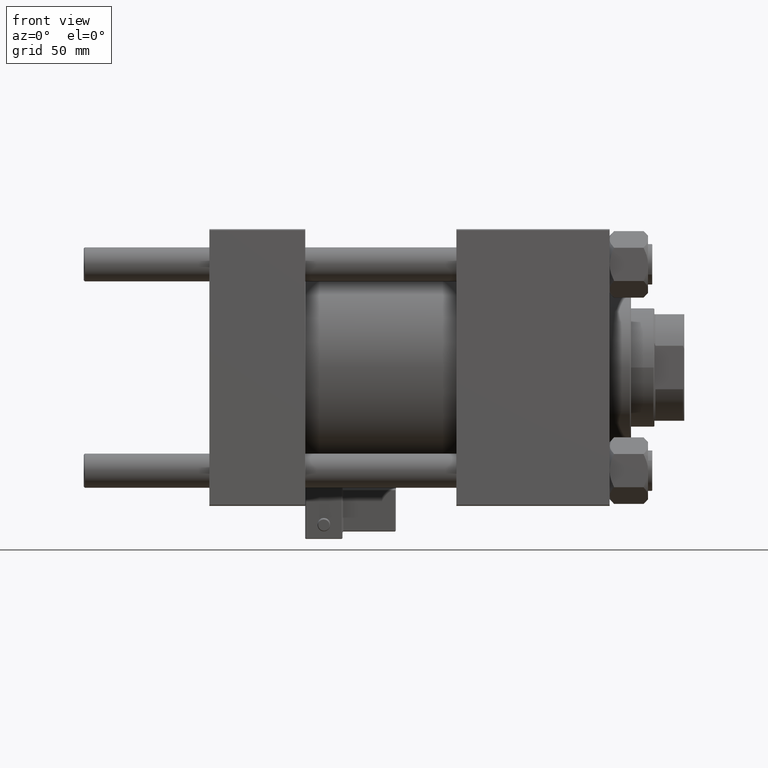
[diagram: clean part render]
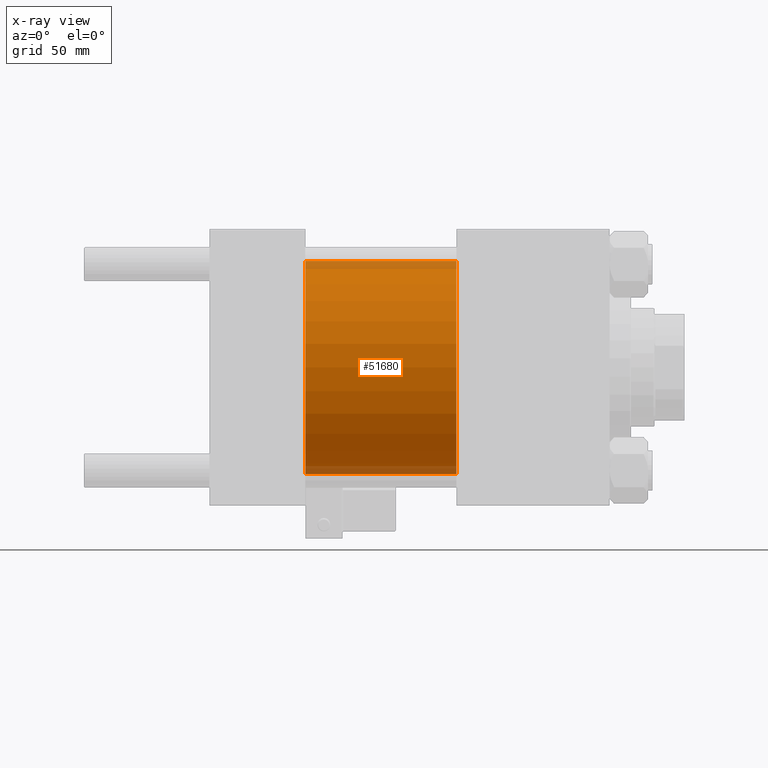
[diagram: x-ray — body ghosted, one internal face saturated and labeled with its STEP entity id]
A machine part, front view, then the same camera in x-ray: the body is ghosted and one INTERNAL B-rep face — a face not visible from any outside direction — is saturated and labeled: STEP entity #51680.
In plain terms, the highlighted cylindrical surface (partial cylindrical patch) has radius 50 mm, axis along (-1, -0, -0).
Its self-contained STEP definition (entity closure, byte-faithful):
#541 = CARTESIAN_POINT ( 'NONE',  ( 45.00000000000000000, 0.000000000000000000, 50.00000000000000000 ) ) ;
#750 = DIRECTION ( 'NONE',  ( 0.000000000000000000, 0.000000000000000000, -1.000000000000000000 ) ) ;
#977 = VERTEX_POINT ( 'NONE', #3484 ) ;
#1014 = CARTESIAN_POINT ( 'NONE',  ( 45.00000000000000000, 0.000000000000000000, 0.000000000000000000 ) ) ;
#2839 = ORIENTED_EDGE ( 'NONE', *, *, #21504, .F. ) ;
#3484 = CARTESIAN_POINT ( 'NONE',  ( 45.00000000000000000, 6.123233995736766085E-15, -50.00000000000000000 ) ) ;
#4256 = CARTESIAN_POINT ( 'NONE',  ( 115.9999999999999858, 0.000000000000000000, 0.000000000000000000 ) ) ;
#4872 = DIRECTION ( 'NONE',  ( -1.000000000000000000, -0.000000000000000000, -0.000000000000000000 ) ) ;
#4912 = AXIS2_PLACEMENT_3D ( 'NONE', #4256, #20440, #15663 ) ;
#8812 = CARTESIAN_POINT ( 'NONE',  ( 115.9999999999999858, 0.000000000000000000, 50.00000000000000000 ) ) ;
#9351 = ORIENTED_EDGE ( 'NONE', *, *, #40096, .F. ) ;
#9606 = VECTOR ( 'NONE', #4872, 1000.000000000000000 ) ;
#12198 = CIRCLE ( 'NONE', #39336, 50.00000000000000000 ) ;
#12462 = CYLINDRICAL_SURFACE ( 'NONE', #4912, 50.00000000000000000 ) ;
#13320 = DIRECTION ( 'NONE',  ( 0.000000000000000000, 0.000000000000000000, -1.000000000000000000 ) ) ;
#13592 = DIRECTION ( 'NONE',  ( 1.000000000000000000, 0.000000000000000000, 0.000000000000000000 ) ) ;
#15663 = DIRECTION ( 'NONE',  ( 0.000000000000000000, 0.000000000000000000, 1.000000000000000000 ) ) ;
#16711 = VECTOR ( 'NONE', #44645, 1000.000000000000000 ) ;
#19748 = VERTEX_POINT ( 'NONE', #39333 ) ;
#20252 = CIRCLE ( 'NONE', #21066, 50.00000000000000000 ) ;
#20440 = DIRECTION ( 'NONE',  ( -1.000000000000000000, -0.000000000000000000, -0.000000000000000000 ) ) ;
#20503 = CARTESIAN_POINT ( 'NONE',  ( 115.9999999999999858, 0.000000000000000000, 50.00000000000000000 ) ) ;
#21066 = AXIS2_PLACEMENT_3D ( 'NONE', #21298, #13592, #13320 ) ;
#21298 = CARTESIAN_POINT ( 'NONE',  ( 115.9999999999999858, 0.000000000000000000, 0.000000000000000000 ) ) ;
#21504 = EDGE_CURVE ( 'NONE', #24083, #25089, #29221, .T. ) ;
#24083 = VERTEX_POINT ( 'NONE', #8812 ) ;
#24790 = EDGE_CURVE ( 'NONE', #24083, #19748, #20252, .T. ) ;
#25089 = VERTEX_POINT ( 'NONE', #541 ) ;
#29221 = LINE ( 'NONE', #20503, #16711 ) ;
#38911 = EDGE_CURVE ( 'NONE', #19748, #977, #41492, .T. ) ;
#39333 = CARTESIAN_POINT ( 'NONE',  ( 115.9999999999999858, 6.123233995736766085E-15, -50.00000000000000000 ) ) ;
#39336 = AXIS2_PLACEMENT_3D ( 'NONE', #1014, #46363, #750 ) ;
#40096 = EDGE_CURVE ( 'NONE', #25089, #977, #12198, .T. ) ;
#41492 = LINE ( 'NONE', #49424, #9606 ) ;
#43423 = ORIENTED_EDGE ( 'NONE', *, *, #38911, .T. ) ;
#44416 = ORIENTED_EDGE ( 'NONE', *, *, #24790, .T. ) ;
#44645 = DIRECTION ( 'NONE',  ( -1.000000000000000000, -0.000000000000000000, -0.000000000000000000 ) ) ;
#46363 = DIRECTION ( 'NONE',  ( 1.000000000000000000, 0.000000000000000000, 0.000000000000000000 ) ) ;
#48798 = FACE_OUTER_BOUND ( 'NONE', #50899, .T. ) ;
#49424 = CARTESIAN_POINT ( 'NONE',  ( 115.9999999999999858, 6.123233995736766085E-15, -50.00000000000000000 ) ) ;
#50899 = EDGE_LOOP ( 'NONE', ( #44416, #43423, #9351, #2839 ) ) ;
#51680 = ADVANCED_FACE ( 'NONE', ( #48798 ), #12462, .F. ) ;